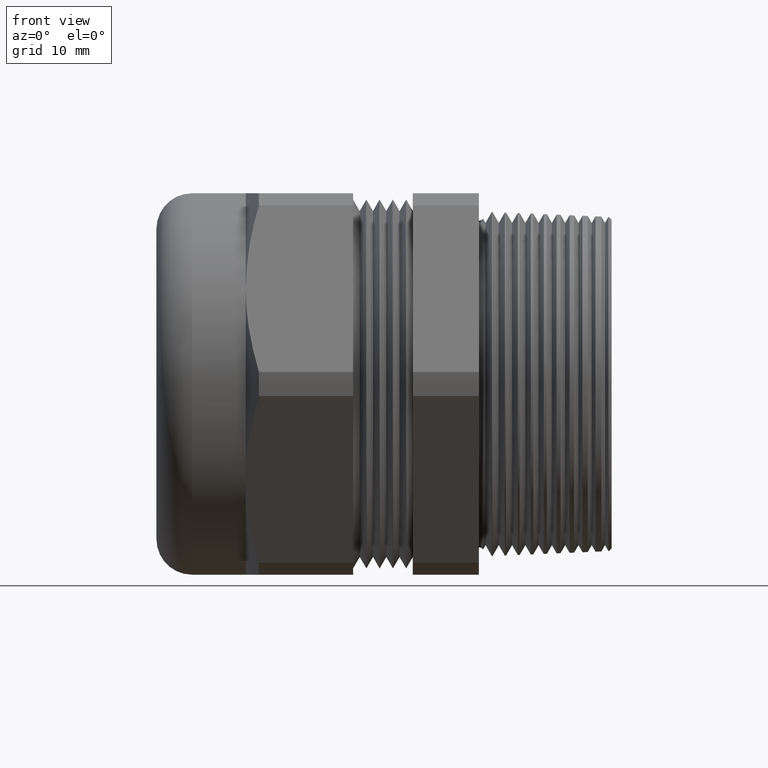
[diagram: clean part render]
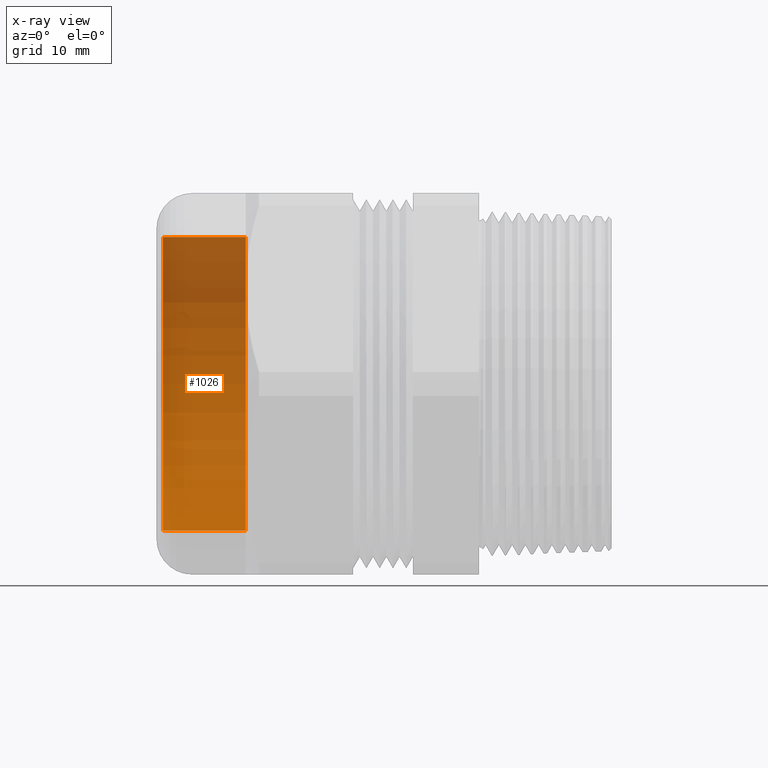
[diagram: x-ray — body ghosted, one internal face saturated and labeled with its STEP entity id]
A machine part, front view, then the same camera in x-ray: the body is ghosted and one INTERNAL B-rep face — a face not visible from any outside direction — is saturated and labeled: STEP entity #1026.
In plain terms, the highlighted cylindrical surface (partial cylindrical patch) has radius 17.7038 mm, axis along (1, 0, 0).
Its self-contained STEP definition (entity closure, byte-faithful):
#960 = ORIENTED_EDGE ( 'NONE', *, *, #1077, .F. ) ;
#965 = VERTEX_POINT ( 'NONE', #2791 ) ;
#982 = VERTEX_POINT ( 'NONE', #2821 ) ;
#984 = VERTEX_POINT ( 'NONE', #2819 ) ;
#989 = ORIENTED_EDGE ( 'NONE', *, *, #990, .T. ) ;
#990 = EDGE_CURVE ( 'NONE', #982, #984, #2928, .T. ) ;
#1011 = ORIENTED_EDGE ( 'NONE', *, *, #1025, .T. ) ;
#1019 = EDGE_LOOP ( 'NONE', ( #1011, #989, #960, #1085 ) ) ;
#1025 = EDGE_CURVE ( 'NONE', #965, #982, #2983, .T. ) ;
#1026 = ADVANCED_FACE ( 'NONE', ( #2984 ), #2976, .T. ) ;
#1064 = EDGE_CURVE ( 'NONE', #965, #1078, #3059, .T. ) ;
#1077 = EDGE_CURVE ( 'NONE', #1078, #984, #3233, .T. ) ;
#1078 = VERTEX_POINT ( 'NONE', #3228 ) ;
#1085 = ORIENTED_EDGE ( 'NONE', *, *, #1064, .F. ) ;
#2791 = CARTESIAN_POINT ( 'NONE',  ( -1.499999999999999800, 0.0000000000000000000, -0.6969999999999999500 ) ) ;
#2819 = CARTESIAN_POINT ( 'NONE',  ( -1.106250000000000200, 8.535788190057050200E-017, 0.6969999999999999500 ) ) ;
#2821 = CARTESIAN_POINT ( 'NONE',  ( -1.499999999999999800, 8.535788190057050200E-017, 0.6969999999999999500 ) ) ;
#2925 = DIRECTION ( 'NONE',  ( 1.000000000000000000, 0.0000000000000000000, 0.0000000000000000000 ) ) ;
#2926 = VECTOR ( 'NONE', #2925, 39.37007874015748100 ) ;
#2927 = CARTESIAN_POINT ( 'NONE',  ( 0.3423310023310022200, 8.535788190057050200E-017, 0.6969999999999999500 ) ) ;
#2928 = LINE ( 'NONE', #2927, #2926 ) ;
#2973 = DIRECTION ( 'NONE',  ( 0.0000000000000000000, 0.0000000000000000000, -1.000000000000000000 ) ) ;
#2974 = DIRECTION ( 'NONE',  ( 1.000000000000000000, 0.0000000000000000000, 0.0000000000000000000 ) ) ;
#2975 = AXIS2_PLACEMENT_3D ( 'NONE', #2978, #2974, #2973 ) ;
#2976 = CYLINDRICAL_SURFACE ( 'NONE', #2975, 0.6969999999999999500 ) ;
#2978 = CARTESIAN_POINT ( 'NONE',  ( 0.3423310023310022200, 0.0000000000000000000, 0.0000000000000000000 ) ) ;
#2979 = DIRECTION ( 'NONE',  ( 0.0000000000000000000, 0.0000000000000000000, 1.000000000000000000 ) ) ;
#2980 = DIRECTION ( 'NONE',  ( 1.000000000000000000, 0.0000000000000000000, 0.0000000000000000000 ) ) ;
#2981 = CARTESIAN_POINT ( 'NONE',  ( -1.499999999999999800, 0.0000000000000000000, 0.0000000000000000000 ) ) ;
#2982 = AXIS2_PLACEMENT_3D ( 'NONE', #2981, #2980, #2979 ) ;
#2983 = CIRCLE ( 'NONE', #2982, 0.6969999999999999500 ) ;
#2984 = FACE_OUTER_BOUND ( 'NONE', #1019, .T. ) ;
#3059 = LINE ( 'NONE', #3182, #3181 ) ;
#3180 = DIRECTION ( 'NONE',  ( 1.000000000000000000, 0.0000000000000000000, 0.0000000000000000000 ) ) ;
#3181 = VECTOR ( 'NONE', #3180, 39.37007874015748100 ) ;
#3182 = CARTESIAN_POINT ( 'NONE',  ( 0.3423310023310022200, 0.0000000000000000000, -0.6969999999999999500 ) ) ;
#3228 = CARTESIAN_POINT ( 'NONE',  ( -1.106250000000000200, 0.0000000000000000000, -0.6969999999999999500 ) ) ;
#3229 = DIRECTION ( 'NONE',  ( 0.0000000000000000000, 0.0000000000000000000, -1.000000000000000000 ) ) ;
#3230 = DIRECTION ( 'NONE',  ( 1.000000000000000000, 0.0000000000000000000, 0.0000000000000000000 ) ) ;
#3231 = CARTESIAN_POINT ( 'NONE',  ( -1.106250000000000200, 0.0000000000000000000, 0.0000000000000000000 ) ) ;
#3232 = AXIS2_PLACEMENT_3D ( 'NONE', #3231, #3230, #3229 ) ;
#3233 = CIRCLE ( 'NONE', #3232, 0.6969999999999999500 ) ;